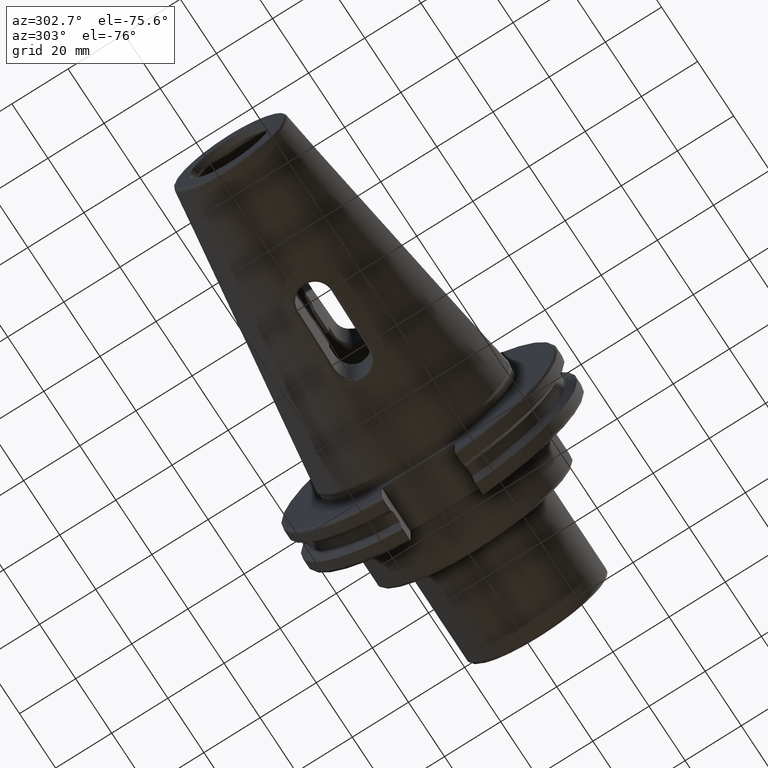
[diagram: clean part render]
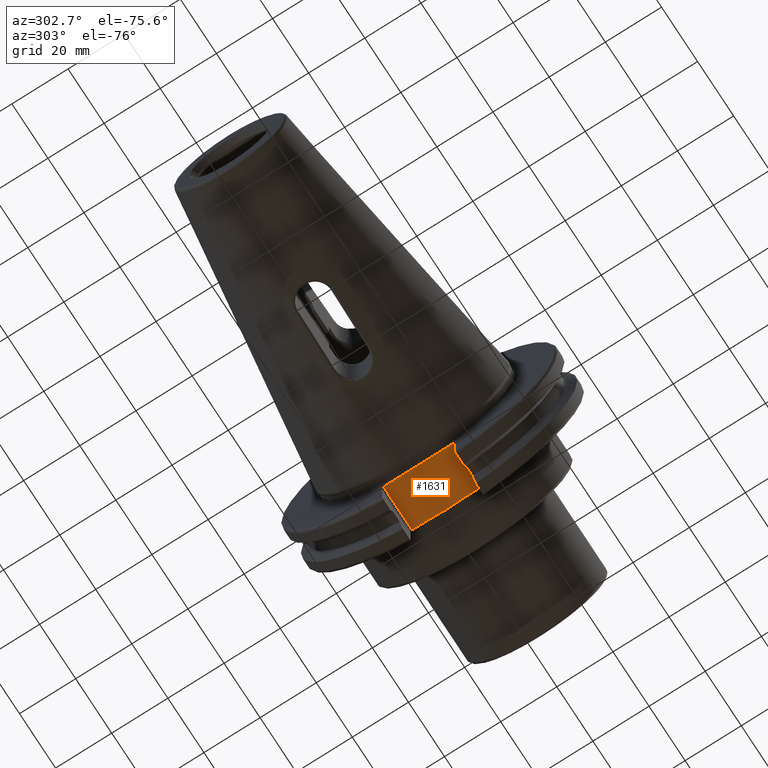
[diagram: same view with one face highlighted and labeled with its STEP entity id]
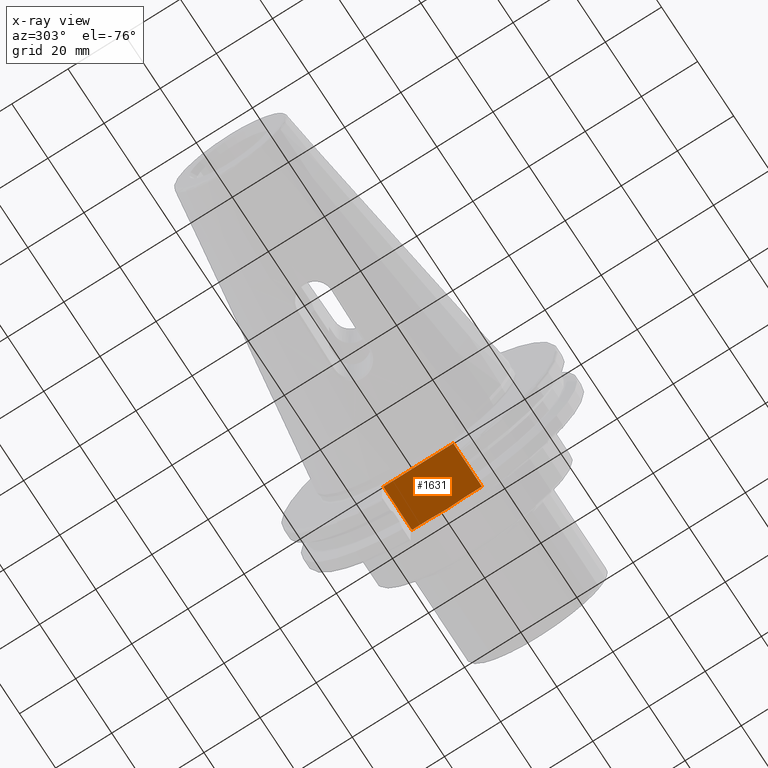
[diagram: x-ray of the same camera — body ghosted, the highlighted face saturated]
A machine part, auxiliary view. The second image highlights one B-rep face of the part: STEP entity #1631.
The next image is the same camera in x-ray: the body ghosted, the highlighted face saturated — about 0% of this face is hidden behind the body in this view.
In plain terms, the highlighted planar face has unit normal (0, 0, 1).
Its self-contained STEP definition (entity closure, byte-faithful):
#168=PLANE('',#1778);
#245=FACE_OUTER_BOUND('',#343,.T.);
#343=EDGE_LOOP('',(#1420,#1421,#1422,#1423,#1424,#1425,#1426));
#411=B_SPLINE_CURVE_WITH_KNOTS('',3,(#3143,#3144,#3145,#3146,#3147,#3148),
 .UNSPECIFIED.,.F.,.F.,(4,2,4),(2.09820602433263,2.5247494364482,2.72121070581847),
 .UNSPECIFIED.);
#412=B_SPLINE_CURVE_WITH_KNOTS('',3,(#3151,#3152,#3153,#3154,#3155,#3156),
 .UNSPECIFIED.,.F.,.F.,(4,2,4),(1.47520134284679,1.67166261221706,2.09820602433263),
 .UNSPECIFIED.);
#475=LINE('',#3186,#584);
#485=LINE('',#3209,#594);
#493=LINE('',#3239,#602);
#519=LINE('',#3474,#628);
#520=LINE('',#3476,#629);
#584=VECTOR('',#1990,10.);
#594=VECTOR('',#2004,10.);
#602=VECTOR('',#2028,10.);
#628=VECTOR('',#2104,10.);
#629=VECTOR('',#2107,10.);
#717=VERTEX_POINT('',#3140);
#718=VERTEX_POINT('',#3142);
#719=VERTEX_POINT('',#3149);
#726=VERTEX_POINT('',#3185);
#737=VERTEX_POINT('',#3207);
#750=VERTEX_POINT('',#3236);
#751=VERTEX_POINT('',#3238);
#914=EDGE_CURVE('',#718,#717,#411,.F.);
#916=EDGE_CURVE('',#717,#719,#412,.F.);
#930=EDGE_CURVE('',#718,#726,#475,.T.);
#942=EDGE_CURVE('',#737,#719,#485,.T.);
#956=EDGE_CURVE('',#750,#751,#493,.T.);
#1017=EDGE_CURVE('',#726,#750,#519,.T.);
#1018=EDGE_CURVE('',#751,#737,#520,.T.);
#1420=ORIENTED_EDGE('',*,*,#1017,.F.);
#1421=ORIENTED_EDGE('',*,*,#930,.F.);
#1422=ORIENTED_EDGE('',*,*,#914,.T.);
#1423=ORIENTED_EDGE('',*,*,#916,.T.);
#1424=ORIENTED_EDGE('',*,*,#942,.F.);
#1425=ORIENTED_EDGE('',*,*,#1018,.F.);
#1426=ORIENTED_EDGE('',*,*,#956,.F.);
#1631=ADVANCED_FACE('',(#245),#168,.F.);
#1778=AXIS2_PLACEMENT_3D('',#3475,#2105,#2106);
#1990=DIRECTION('',(0.,1.,0.));
#2004=DIRECTION('',(0.,1.,0.));
#2028=DIRECTION('',(0.,-1.,0.));
#2104=DIRECTION('',(-1.,2.63163976207444E-16,0.));
#2105=DIRECTION('center_axis',(0.,0.,1.));
#2106=DIRECTION('ref_axis',(1.,0.,0.));
#2107=DIRECTION('',(1.,2.63163976207445E-16,0.));
#3140=CARTESIAN_POINT('',(19.2646090145666,-2.50881368973018E-15,-35.306));
#3142=CARTESIAN_POINT('',(19.05,6.64017989214148,-35.306));
#3143=CARTESIAN_POINT('Ctrl Pts',(19.2646090145666,-6.93889390390723E-16,
-35.306));
#3144=CARTESIAN_POINT('Ctrl Pts',(19.2646090145666,1.42181137371857,-35.306));
#3145=CARTESIAN_POINT('Ctrl Pts',(19.1680602893707,3.12525108863957,-35.306));
#3146=CARTESIAN_POINT('Ctrl Pts',(19.0762097808881,5.19990111728298,-35.306));
#3147=CARTESIAN_POINT('Ctrl Pts',(19.05,5.98530899424058,-35.306));
#3148=CARTESIAN_POINT('Ctrl Pts',(19.05,6.64017989214148,-35.306));
#3149=CARTESIAN_POINT('',(19.05,-6.64017989214148,-35.306));
#3151=CARTESIAN_POINT('Ctrl Pts',(19.05,-6.64017989214148,-35.306));
#3152=CARTESIAN_POINT('Ctrl Pts',(19.05,-5.98530899424058,-35.306));
#3153=CARTESIAN_POINT('Ctrl Pts',(19.0762097808881,-5.19990111728298,-35.306));
#3154=CARTESIAN_POINT('Ctrl Pts',(19.1680602893707,-3.12525108863957,-35.306));
#3155=CARTESIAN_POINT('Ctrl Pts',(19.2646090145666,-1.42181137371857,-35.306));
#3156=CARTESIAN_POINT('Ctrl Pts',(19.2646090145666,5.55111512312578E-16,
-35.306));
#3185=CARTESIAN_POINT('',(19.05,12.45,-35.306));
#3186=CARTESIAN_POINT('',(19.05,-3.33066907387547E-15,-35.306));
#3207=CARTESIAN_POINT('',(19.05,-12.45,-35.306));
#3209=CARTESIAN_POINT('',(19.05,-3.33066907387547E-15,-35.306));
#3236=CARTESIAN_POINT('',(3.175,12.45,-35.306));
#3238=CARTESIAN_POINT('',(3.175,-12.45,-35.306));
#3239=CARTESIAN_POINT('',(3.175,24.60625,-35.306));
#3474=CARTESIAN_POINT('',(10.63125,12.45,-35.306));
#3475=CARTESIAN_POINT('Origin',(18.0875,-6.66133814775094E-15,-35.306));
#3476=CARTESIAN_POINT('',(19.06875,-12.45,-35.306));